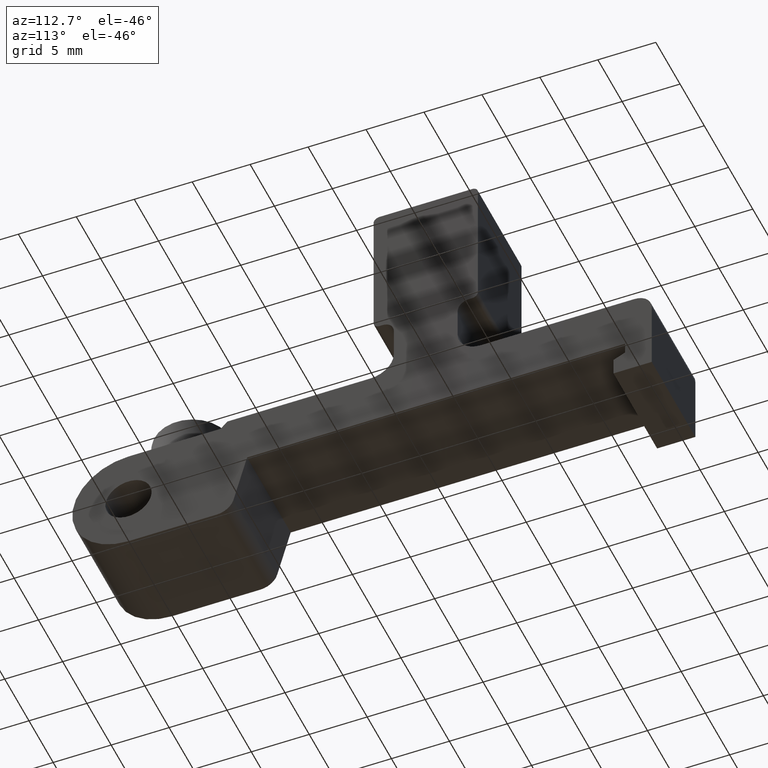
[diagram: clean part render]
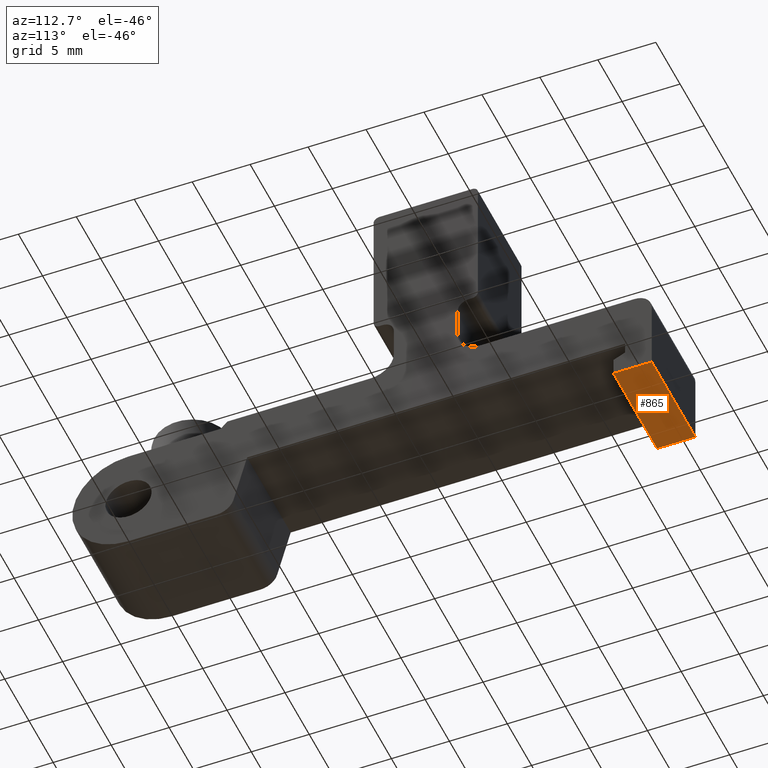
[diagram: same view with one face highlighted and labeled with its STEP entity id]
A machine part, auxiliary view. The second image highlights one B-rep face of the part: STEP entity #865.
In plain terms, the highlighted planar face has unit normal (0, 0, -1).
Its self-contained STEP definition (entity closure, byte-faithful):
#46=PLANE('',#969);
#130=FACE_OUTER_BOUND('',#177,.T.);
#177=EDGE_LOOP('',(#759,#760,#761,#762));
#194=LINE('',#1259,#272);
#253=LINE('',#1448,#331);
#254=LINE('',#1451,#332);
#255=LINE('',#1452,#333);
#272=VECTOR('',#1004,10.);
#331=VECTOR('',#1201,10.);
#332=VECTOR('',#1204,10.);
#333=VECTOR('',#1205,10.);
#390=VERTEX_POINT('',#1256);
#391=VERTEX_POINT('',#1258);
#452=VERTEX_POINT('',#1446);
#453=VERTEX_POINT('',#1450);
#471=EDGE_CURVE('',#390,#391,#194,.T.);
#565=EDGE_CURVE('',#452,#390,#253,.T.);
#566=EDGE_CURVE('',#453,#452,#254,.T.);
#567=EDGE_CURVE('',#453,#391,#255,.T.);
#759=ORIENTED_EDGE('',*,*,#471,.F.);
#760=ORIENTED_EDGE('',*,*,#565,.F.);
#761=ORIENTED_EDGE('',*,*,#566,.F.);
#762=ORIENTED_EDGE('',*,*,#567,.T.);
#865=ADVANCED_FACE('',(#130),#46,.T.);
#969=AXIS2_PLACEMENT_3D('',#1449,#1202,#1203);
#1004=DIRECTION('',(0.,-1.,-1.44811698864151E-15));
#1201=DIRECTION('',(-1.,0.,0.));
#1202=DIRECTION('center_axis',(0.,1.44811698864151E-15,-1.));
#1203=DIRECTION('ref_axis',(0.,1.,1.44811698864151E-15));
#1204=DIRECTION('',(0.,1.,1.44811698864151E-15));
#1205=DIRECTION('',(-1.,0.,0.));
#1256=CARTESIAN_POINT('',(-4.5,19.8,-2.35));
#1258=CARTESIAN_POINT('',(-4.5,16.5,-2.35));
#1259=CARTESIAN_POINT('',(-4.5,17.,-2.35));
#1446=CARTESIAN_POINT('',(4.5,19.8,-2.35));
#1448=CARTESIAN_POINT('',(0.,19.8,-2.35));
#1449=CARTESIAN_POINT('Origin',(0.,17.,-2.35));
#1450=CARTESIAN_POINT('',(4.5,16.5,-2.35));
#1451=CARTESIAN_POINT('',(4.5,17.,-2.35));
#1452=CARTESIAN_POINT('',(0.,16.5,-2.35));